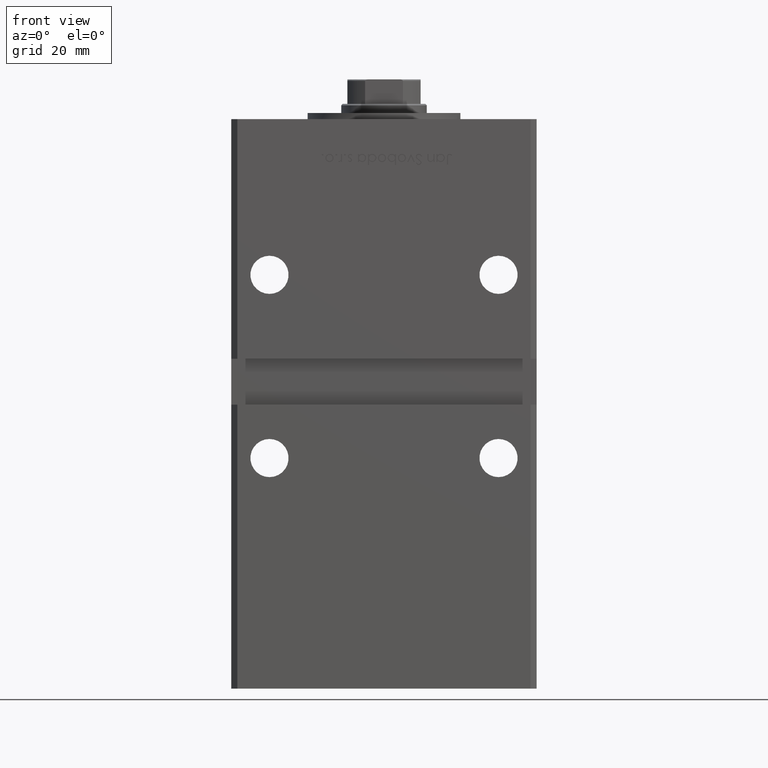
[diagram: clean part render]
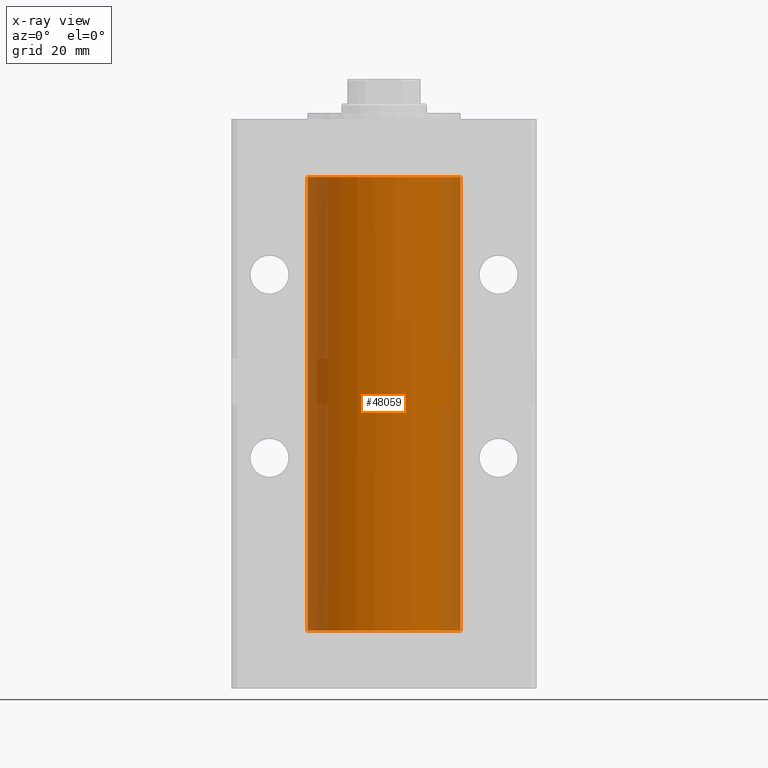
[diagram: x-ray — body ghosted, one internal face saturated and labeled with its STEP entity id]
A machine part, front view, then the same camera in x-ray: the body is ghosted and one INTERNAL B-rep face — a face not visible from any outside direction — is saturated and labeled: STEP entity #48059.
In plain terms, the highlighted cylindrical surface (partial cylindrical patch) has radius 25 mm, axis along (-0, -0, -1).
Its self-contained STEP definition (entity closure, byte-faithful):
#2523 = DIRECTION ( 'NONE',  ( -0.000000000000000000, -0.000000000000000000, -1.000000000000000000 ) ) ;
#2670 = CARTESIAN_POINT ( 'NONE',  ( 0.000000000000000000, 0.000000000000000000, 148.5000000000000000 ) ) ;
#5138 = DIRECTION ( 'NONE',  ( -1.000000000000000000, 0.000000000000000000, 0.000000000000000000 ) ) ;
#5177 = DIRECTION ( 'NONE',  ( 1.000000000000000000, 0.000000000000000000, 0.000000000000000000 ) ) ;
#5497 = CARTESIAN_POINT ( 'NONE',  ( -25.00000000000000000, 0.000000000000000000, 0.000000000000000000 ) ) ;
#5720 = CARTESIAN_POINT ( 'NONE',  ( 25.00000000000000000, 3.061616997868383043E-15, 148.5000000000000000 ) ) ;
#6707 = DIRECTION ( 'NONE',  ( -0.000000000000000000, 0.000000000000000000, 1.000000000000000000 ) ) ;
#7260 = CARTESIAN_POINT ( 'NONE',  ( 25.00000000000000000, 3.061616997868383043E-15, 148.5000000000000000 ) ) ;
#7499 = AXIS2_PLACEMENT_3D ( 'NONE', #2670, #6707, #7763 ) ;
#7763 = DIRECTION ( 'NONE',  ( 1.000000000000000000, 0.000000000000000000, 0.000000000000000000 ) ) ;
#9754 = CARTESIAN_POINT ( 'NONE',  ( 0.000000000000000000, 0.000000000000000000, 0.000000000000000000 ) ) ;
#13365 = CIRCLE ( 'NONE', #48568, 25.00000000000000000 ) ;
#13546 = CIRCLE ( 'NONE', #7499, 25.00000000000000000 ) ;
#14422 = ORIENTED_EDGE ( 'NONE', *, *, #36033, .F. ) ;
#15693 = LINE ( 'NONE', #43431, #27369 ) ;
#16900 = EDGE_CURVE ( 'NONE', #50188, #34548, #44141, .T. ) ;
#18581 = CARTESIAN_POINT ( 'NONE',  ( -25.00000000000000000, 0.000000000000000000, 148.5000000000000000 ) ) ;
#19781 = VECTOR ( 'NONE', #48193, 1000.000000000000000 ) ;
#21051 = DIRECTION ( 'NONE',  ( -0.000000000000000000, -0.000000000000000000, -1.000000000000000000 ) ) ;
#21585 = CARTESIAN_POINT ( 'NONE',  ( 0.000000000000000000, 0.000000000000000000, 148.5000000000000000 ) ) ;
#23597 = ORIENTED_EDGE ( 'NONE', *, *, #16900, .T. ) ;
#23887 = AXIS2_PLACEMENT_3D ( 'NONE', #21585, #21051, #5138 ) ;
#27369 = VECTOR ( 'NONE', #2523, 1000.000000000000000 ) ;
#27861 = EDGE_LOOP ( 'NONE', ( #47628, #23597, #14422, #37105 ) ) ;
#29931 = DIRECTION ( 'NONE',  ( -0.000000000000000000, 0.000000000000000000, 1.000000000000000000 ) ) ;
#34195 = CYLINDRICAL_SURFACE ( 'NONE', #23887, 25.00000000000000000 ) ;
#34548 = VERTEX_POINT ( 'NONE', #45621 ) ;
#35742 = VERTEX_POINT ( 'NONE', #5497 ) ;
#36033 = EDGE_CURVE ( 'NONE', #35742, #34548, #13365, .T. ) ;
#37105 = ORIENTED_EDGE ( 'NONE', *, *, #44542, .F. ) ;
#42028 = FACE_OUTER_BOUND ( 'NONE', #27861, .T. ) ;
#42521 = EDGE_CURVE ( 'NONE', #46479, #50188, #13546, .T. ) ;
#43431 = CARTESIAN_POINT ( 'NONE',  ( -25.00000000000000000, 0.000000000000000000, 148.5000000000000000 ) ) ;
#44141 = LINE ( 'NONE', #7260, #19781 ) ;
#44542 = EDGE_CURVE ( 'NONE', #46479, #35742, #15693, .T. ) ;
#45621 = CARTESIAN_POINT ( 'NONE',  ( 25.00000000000000000, 3.061616997868383043E-15, 0.000000000000000000 ) ) ;
#46479 = VERTEX_POINT ( 'NONE', #18581 ) ;
#47628 = ORIENTED_EDGE ( 'NONE', *, *, #42521, .T. ) ;
#48059 = ADVANCED_FACE ( 'NONE', ( #42028 ), #34195, .F. ) ;
#48193 = DIRECTION ( 'NONE',  ( -0.000000000000000000, -0.000000000000000000, -1.000000000000000000 ) ) ;
#48568 = AXIS2_PLACEMENT_3D ( 'NONE', #9754, #29931, #5177 ) ;
#50188 = VERTEX_POINT ( 'NONE', #5720 ) ;